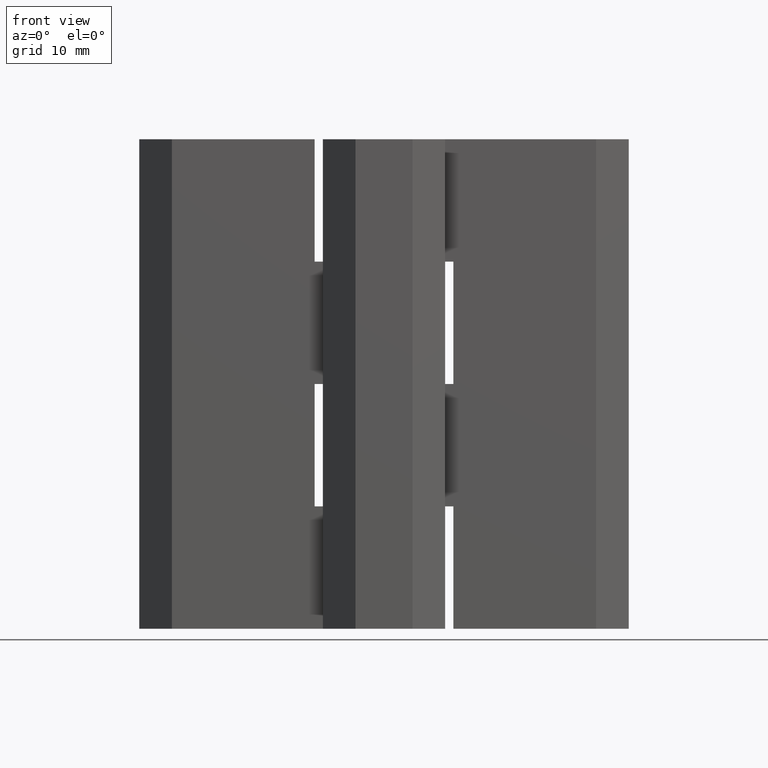
[diagram: clean part render]
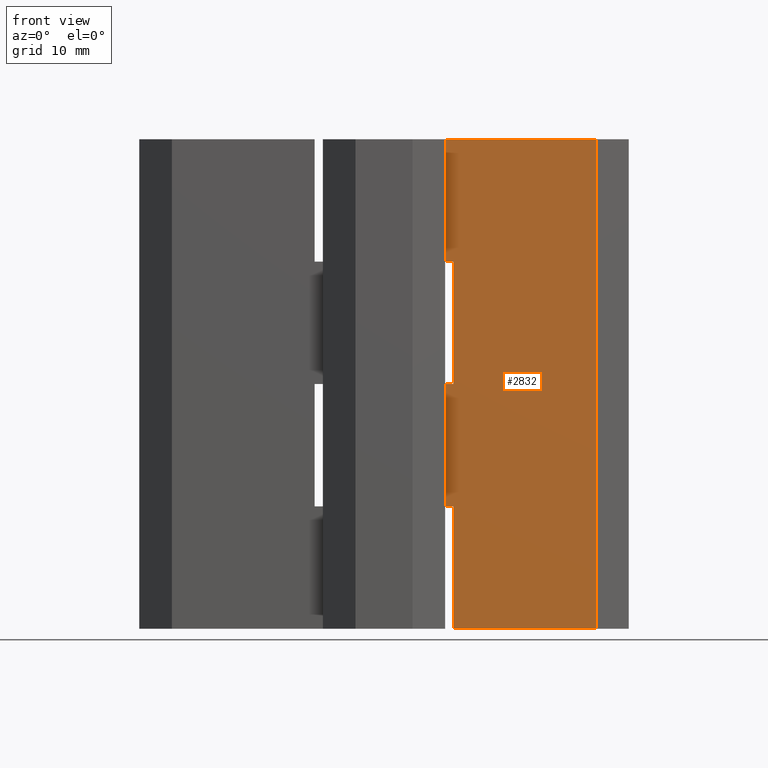
[diagram: same view with one face highlighted and labeled with its STEP entity id]
A machine part, front view. The second image highlights one B-rep face of the part: STEP entity #2832.
In plain terms, the highlighted face is a freeform B-spline surface patch.
Its self-contained STEP definition (entity closure, byte-faithful):
#2016=CARTESIAN_POINT('',(8.500000000000000,0.0,44.999999999953687));
#2017=VERTEX_POINT('',#2016);
#2032=CARTESIAN_POINT('',(8.500000000000000,0.0,30.0));
#2033=VERTEX_POINT('',#2032);
#2039=CARTESIAN_POINT('',(8.500000000000000,0.0,44.999999999953687));
#2040=CARTESIAN_POINT('',(8.500000000000000,0.0,30.0));
#2041=QUASI_UNIFORM_CURVE('',1,(#2039,#2040),.UNSPECIFIED.,.F.,.U.);
#2042=EDGE_CURVE('',#2017,#2033,#2041,.T.);
#2117=CARTESIAN_POINT('',(7.500000000000000,0.0,30.0));
#2118=VERTEX_POINT('',#2117);
#2124=CARTESIAN_POINT('',(8.500000000000000,0.0,30.0));
#2125=CARTESIAN_POINT('',(7.500000000000000,0.0,30.0));
#2126=QUASI_UNIFORM_CURVE('',1,(#2124,#2125),.UNSPECIFIED.,.F.,.U.);
#2127=EDGE_CURVE('',#2033,#2118,#2126,.T.);
#2145=CARTESIAN_POINT('',(7.500000000000000,0.0,44.999999999951541));
#2146=VERTEX_POINT('',#2145);
#2215=CARTESIAN_POINT('',(7.500000000000000,0.0,44.999999999951541));
#2216=CARTESIAN_POINT('',(8.500000000000000,0.0,44.999999999953687));
#2217=QUASI_UNIFORM_CURVE('',1,(#2215,#2216),.UNSPECIFIED.,.F.,.U.);
#2218=EDGE_CURVE('',#2146,#2017,#2217,.T.);
#2236=CARTESIAN_POINT('',(7.500000000000000,0.0,15.000000000019551));
#2237=VERTEX_POINT('',#2236);
#2307=CARTESIAN_POINT('',(8.500000000000000,0.0,15.000000000018600));
#2308=VERTEX_POINT('',#2307);
#2314=CARTESIAN_POINT('',(7.500000000000000,0.0,15.000000000019551));
#2315=CARTESIAN_POINT('',(8.500000000000000,0.0,15.000000000018600));
#2316=QUASI_UNIFORM_CURVE('',1,(#2314,#2315),.UNSPECIFIED.,.F.,.U.);
#2317=EDGE_CURVE('',#2237,#2308,#2316,.T.);
#2341=CARTESIAN_POINT('',(8.500000000000000,0.0,0.0));
#2342=VERTEX_POINT('',#2341);
#2348=CARTESIAN_POINT('',(8.500000000000000,0.0,15.000000000018600));
#2349=CARTESIAN_POINT('',(8.500000000000000,0.0,0.0));
#2350=QUASI_UNIFORM_CURVE('',1,(#2348,#2349),.UNSPECIFIED.,.F.,.U.);
#2351=EDGE_CURVE('',#2308,#2342,#2350,.T.);
#2427=CARTESIAN_POINT('',(7.500000000000000,0.0,60.0));
#2428=VERTEX_POINT('',#2427);
#2434=CARTESIAN_POINT('',(26.0,0.0,60.0));
#2435=VERTEX_POINT('',#2434);
#2436=CARTESIAN_POINT('',(26.0,0.0,60.0));
#2437=CARTESIAN_POINT('',(7.500000000000000,0.0,60.0));
#2438=QUASI_UNIFORM_CURVE('',1,(#2436,#2437),.UNSPECIFIED.,.F.,.U.);
#2439=EDGE_CURVE('',#2435,#2428,#2438,.T.);
#2469=CARTESIAN_POINT('',(26.0,0.0,0.0));
#2470=VERTEX_POINT('',#2469);
#2482=CARTESIAN_POINT('',(26.0,0.0,60.0));
#2483=CARTESIAN_POINT('',(26.0,0.0,0.0));
#2484=QUASI_UNIFORM_CURVE('',1,(#2482,#2483),.UNSPECIFIED.,.F.,.U.);
#2485=EDGE_CURVE('',#2435,#2470,#2484,.T.);
#2517=CARTESIAN_POINT('',(26.0,0.0,0.0));
#2518=CARTESIAN_POINT('',(8.500000000000000,0.0,0.0));
#2519=QUASI_UNIFORM_CURVE('',1,(#2517,#2518),.UNSPECIFIED.,.F.,.U.);
#2520=EDGE_CURVE('',#2470,#2342,#2519,.T.);
#2790=CARTESIAN_POINT('',(7.500000000000000,0.0,30.0));
#2791=CARTESIAN_POINT('',(7.500000000000000,0.0,15.000000000019551));
#2792=QUASI_UNIFORM_CURVE('',1,(#2790,#2791),.UNSPECIFIED.,.F.,.U.);
#2793=EDGE_CURVE('',#2118,#2237,#2792,.T.);
#2806=CARTESIAN_POINT('',(7.500000000000000,0.0,60.0));
#2807=CARTESIAN_POINT('',(7.500000000000000,0.0,44.999999999951541));
#2808=QUASI_UNIFORM_CURVE('',1,(#2806,#2807),.UNSPECIFIED.,.F.,.U.);
#2809=EDGE_CURVE('',#2428,#2146,#2808,.T.);
#2815=CARTESIAN_POINT('',(6.575925035856591,0.0,62.996999883708362));
#2816=CARTESIAN_POINT('',(6.575925035856591,0.0,-2.997001493033767));
#2817=CARTESIAN_POINT('',(26.924075460352078,0.0,62.996999883708362));
#2818=CARTESIAN_POINT('',(26.924075460352078,0.0,-2.997001493033767));
#2819=B_SPLINE_SURFACE_WITH_KNOTS('',1,1,((#2815,#2817),(#2816,#2818)),.UNSPECIFIED.,.F.,.F.,.U.,(2,2),(2,2),(0.0,65.994001376742119),(0.0,20.348150424495490),.UNSPECIFIED.);
#2820=ORIENTED_EDGE('',*,*,#2317,.T.);
#2821=ORIENTED_EDGE('',*,*,#2351,.T.);
#2822=ORIENTED_EDGE('',*,*,#2520,.F.);
#2823=ORIENTED_EDGE('',*,*,#2485,.F.);
#2824=ORIENTED_EDGE('',*,*,#2439,.T.);
#2825=ORIENTED_EDGE('',*,*,#2809,.T.);
#2826=ORIENTED_EDGE('',*,*,#2218,.T.);
#2827=ORIENTED_EDGE('',*,*,#2042,.T.);
#2828=ORIENTED_EDGE('',*,*,#2127,.T.);
#2829=ORIENTED_EDGE('',*,*,#2793,.T.);
#2830=EDGE_LOOP('',(#2820,#2821,#2822,#2823,#2824,#2825,#2826,#2827,#2828,#2829));
#2831=FACE_OUTER_BOUND('',#2830,.T.);
#2832=ADVANCED_FACE('',(#2831),#2819,.T.);